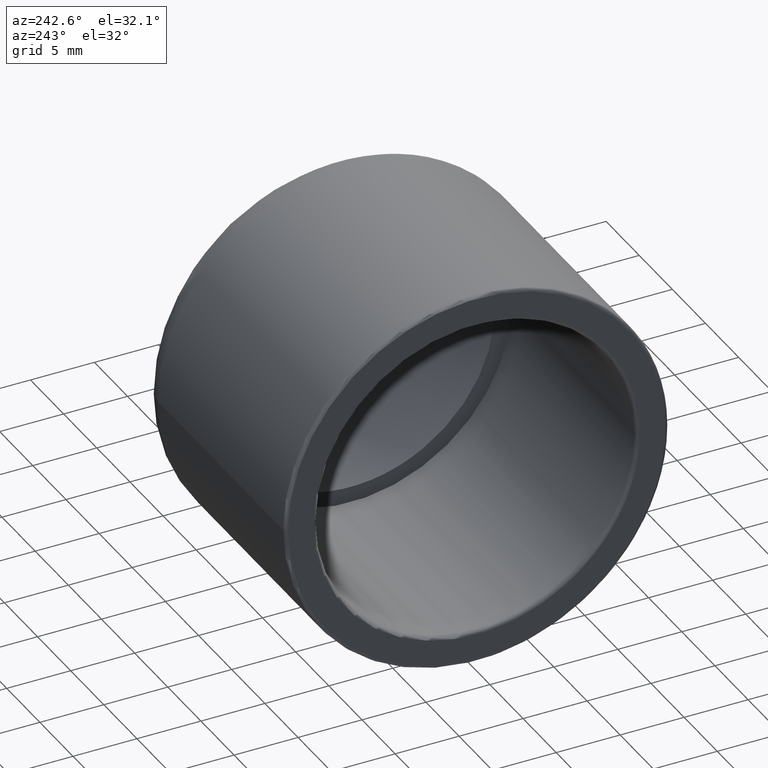
[diagram: clean part render]
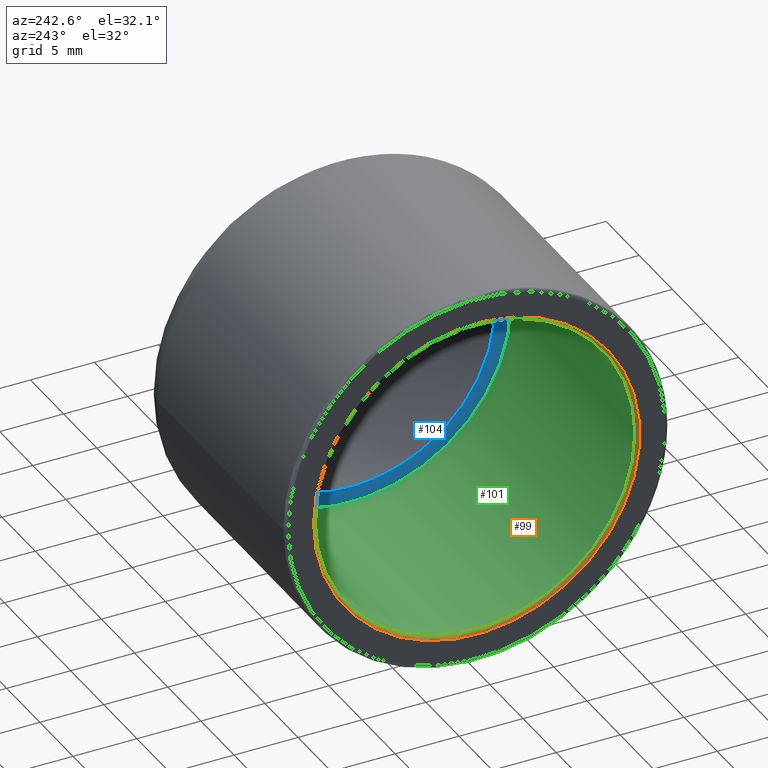
[diagram: same view with three faces highlighted in distinct colors, each labeled with its STEP entity id]
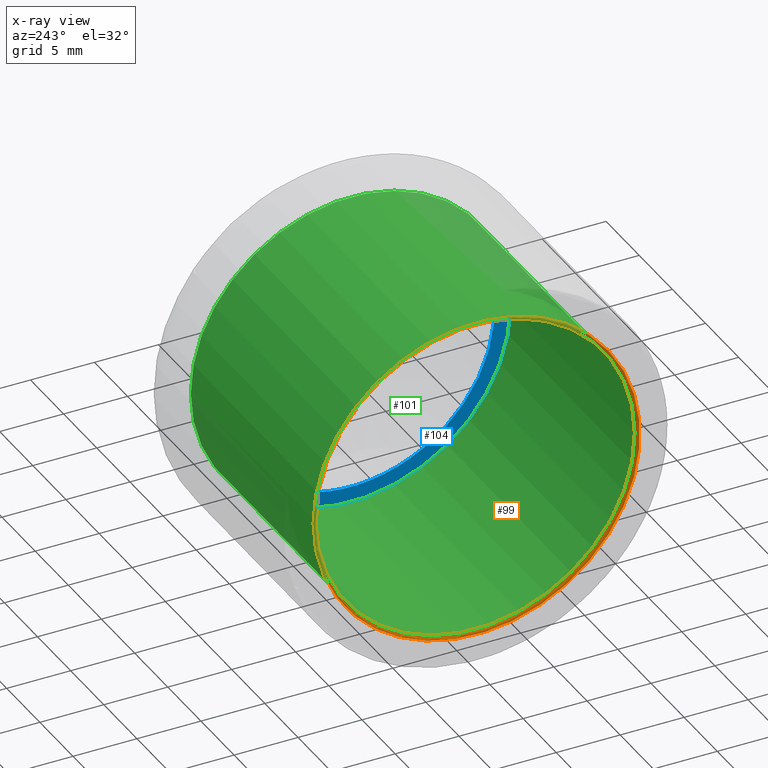
[diagram: x-ray of the same camera — body ghosted, the three highlighted faces saturated]
A machine part, auxiliary view with three faces highlighted in distinct colors.
The next image is the same camera in x-ray (body ghosted, the three faces saturated) — at least one of them is partly hidden behind the body in this view.
Their STEP definitions:

[orange] entity #99 — the highlighted toroidal blend (fillet) surface has major radius 12.75 mm and minor (blend) radius 0.25 mm.
#23=FACE_BOUND('',#43,.T.);
#31=FACE_OUTER_BOUND('',#42,.T.);
#42=EDGE_LOOP('',(#82));
#43=EDGE_LOOP('',(#83));
#56=CIRCLE('',#114,12.5);
#57=CIRCLE('',#115,12.75);
#64=VERTEX_POINT('',#171);
#65=VERTEX_POINT('',#173);
#72=EDGE_CURVE('',#64,#64,#56,.T.);
#73=EDGE_CURVE('',#65,#65,#57,.T.);
#82=ORIENTED_EDGE('',*,*,#72,.T.);
#83=ORIENTED_EDGE('',*,*,#73,.T.);
#94=TOROIDAL_SURFACE('',#113,12.75,0.25);
#99=ADVANCED_FACE('',(#31,#23),#94,.T.);
#113=AXIS2_PLACEMENT_3D('',#170,#138,#139);
#114=AXIS2_PLACEMENT_3D('',#172,#140,#141);
#115=AXIS2_PLACEMENT_3D('',#174,#142,#143);
#138=DIRECTION('center_axis',(1.,2.61813532439671E-16,0.));
#139=DIRECTION('ref_axis',(0.,0.,-1.));
#140=DIRECTION('center_axis',(1.,2.61813532439671E-16,0.));
#141=DIRECTION('ref_axis',(2.60902410786912E-16,-1.,1.83697019872103E-16));
#142=DIRECTION('center_axis',(-1.,-2.61813532439671E-16,0.));
#143=DIRECTION('ref_axis',(2.61813532439671E-16,-1.,1.83697019872103E-16));
#170=CARTESIAN_POINT('Origin',(-27.75,-7.26532552520088E-15,0.));
#171=CARTESIAN_POINT('',(-27.75,12.5,-7.65404249467095E-16));
#172=CARTESIAN_POINT('Origin',(-27.75,-7.26532552520088E-15,0.));
#173=CARTESIAN_POINT('',(-28.,12.75,-3.90356167228219E-15));
#174=CARTESIAN_POINT('Origin',(-28.,-7.33077890831079E-15,0.));

[blue] entity #104 — the highlighted planar face has unit normal (-1, -0, 0).
#16=PLANE('',#123);
#27=FACE_BOUND('',#52,.T.);
#36=FACE_OUTER_BOUND('',#51,.T.);
#51=EDGE_LOOP('',(#91));
#52=EDGE_LOOP('',(#92));
#59=CIRCLE('',#119,12.5);
#60=CIRCLE('',#122,11.25);
#67=VERTEX_POINT('',#179);
#68=VERTEX_POINT('',#183);
#75=EDGE_CURVE('',#67,#67,#59,.T.);
#76=EDGE_CURVE('',#68,#68,#60,.T.);
#91=ORIENTED_EDGE('',*,*,#75,.F.);
#92=ORIENTED_EDGE('',*,*,#76,.T.);
#104=ADVANCED_FACE('',(#36,#27),#16,.T.);
#119=AXIS2_PLACEMENT_3D('',#180,#150,#151);
#122=AXIS2_PLACEMENT_3D('',#184,#156,#157);
#123=AXIS2_PLACEMENT_3D('',#185,#158,#159);
#150=DIRECTION('center_axis',(1.,2.61813532439671E-16,0.));
#151=DIRECTION('ref_axis',(0.,0.,-1.));
#156=DIRECTION('center_axis',(1.,2.61813532439671E-16,0.));
#157=DIRECTION('ref_axis',(0.,0.,-1.));
#158=DIRECTION('center_axis',(-1.,-2.61813532439671E-16,0.));
#159=DIRECTION('ref_axis',(0.,0.,1.));
#179=CARTESIAN_POINT('',(-9.,12.5,0.));
#180=CARTESIAN_POINT('Origin',(-9.,-2.35632179195704E-15,0.));
#183=CARTESIAN_POINT('',(-9.,11.25,0.));
#184=CARTESIAN_POINT('Origin',(-9.,-2.35632179195704E-15,0.));
#185=CARTESIAN_POINT('Origin',(-9.,12.5,0.));

[green] entity #101 — the highlighted cylindrical surface (bore or boss wall) has radius 12.5 mm, axis along (1, 0, 0).
#20=CYLINDRICAL_SURFACE('',#118,12.5);
#25=FACE_BOUND('',#47,.T.);
#33=FACE_OUTER_BOUND('',#46,.T.);
#46=EDGE_LOOP('',(#86));
#47=EDGE_LOOP('',(#87));
#56=CIRCLE('',#114,12.5);
#59=CIRCLE('',#119,12.5);
#64=VERTEX_POINT('',#171);
#67=VERTEX_POINT('',#179);
#72=EDGE_CURVE('',#64,#64,#56,.T.);
#75=EDGE_CURVE('',#67,#67,#59,.T.);
#86=ORIENTED_EDGE('',*,*,#75,.T.);
#87=ORIENTED_EDGE('',*,*,#72,.F.);
#101=ADVANCED_FACE('',(#33,#25),#20,.F.);
#114=AXIS2_PLACEMENT_3D('',#172,#140,#141);
#118=AXIS2_PLACEMENT_3D('',#178,#148,#149);
#119=AXIS2_PLACEMENT_3D('',#180,#150,#151);
#140=DIRECTION('center_axis',(1.,2.61813532439671E-16,0.));
#141=DIRECTION('ref_axis',(2.60902410786912E-16,-1.,1.83697019872103E-16));
#148=DIRECTION('center_axis',(1.,2.61813532439671E-16,0.));
#149=DIRECTION('ref_axis',(-2.96059473233375E-16,1.,0.));
#150=DIRECTION('center_axis',(1.,2.61813532439671E-16,0.));
#151=DIRECTION('ref_axis',(0.,0.,-1.));
#171=CARTESIAN_POINT('',(-27.75,12.5,-7.65404249467095E-16));
#172=CARTESIAN_POINT('Origin',(-27.75,-7.26532552520088E-15,0.));
#178=CARTESIAN_POINT('Origin',(-18.5,-4.84355035013392E-15,0.));
#179=CARTESIAN_POINT('',(-9.,12.5,0.));
#180=CARTESIAN_POINT('Origin',(-9.,-2.35632179195704E-15,0.));